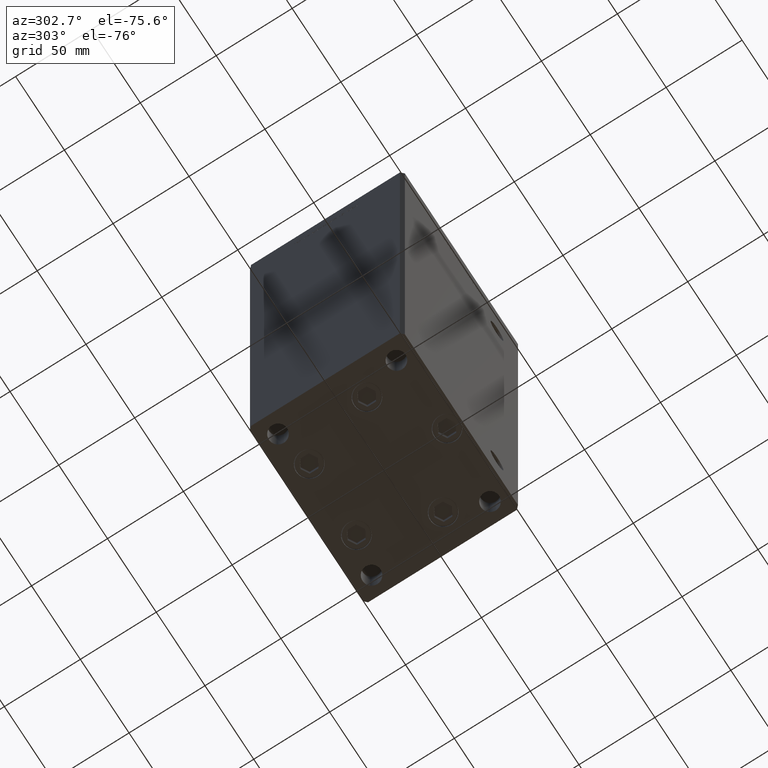
[diagram: clean part render]
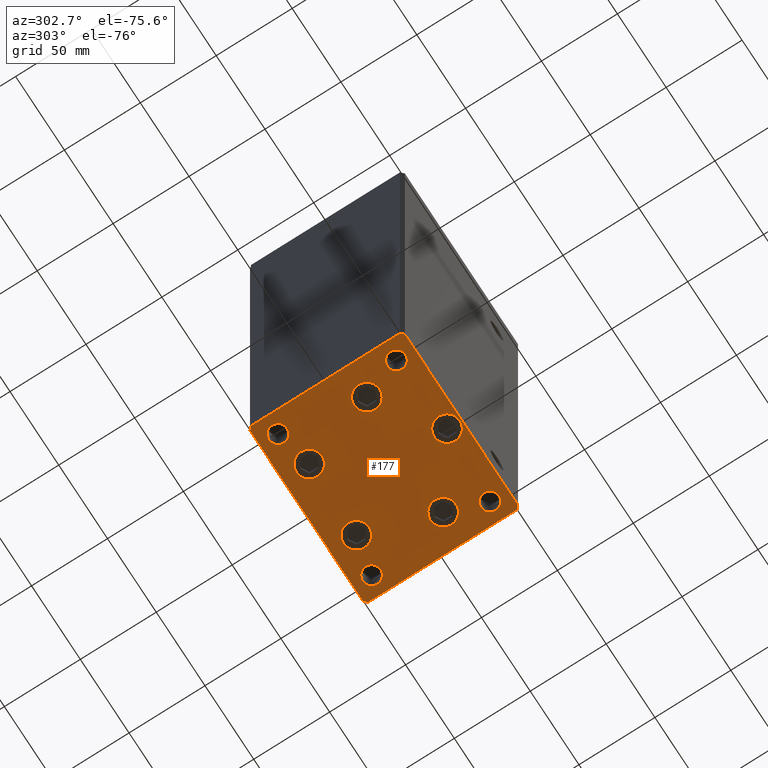
[diagram: same view with one face highlighted and labeled with its STEP entity id]
A machine part, auxiliary view. The second image highlights one B-rep face of the part: STEP entity #177.
In plain terms, the highlighted planar face has unit normal (0, 0, -1).
Its self-contained STEP definition (entity closure, byte-faithful):
#125 = CARTESIAN_POINT ( 'NONE',  ( 48.00000000000000000, -38.99999999999999289, 0.000000000000000000 ) ) ;
#177 = ADVANCED_FACE ( 'NONE', ( #20319, #19810, #19559, #27721, #32441, #43804, #20062, #11905, #40097, #51962 ), #47488, .T. ) ;
#767 = AXIS2_PLACEMENT_3D ( 'NONE', #50122, #49336, #36961 ) ;
#771 = DIRECTION ( 'NONE',  ( 0.000000000000000000, -0.000000000000000000, -1.000000000000000000 ) ) ;
#1126 = CARTESIAN_POINT ( 'NONE',  ( 58.00000000000000000, -51.00000000000000711, 0.000000000000000000 ) ) ;
#1446 = AXIS2_PLACEMENT_3D ( 'NONE', #28796, #13761, #25869 ) ;
#1596 = CIRCLE ( 'NONE', #49565, 6.000000000000005329 ) ;
#2232 = DIRECTION ( 'NONE',  ( 1.000000000000000000, 0.000000000000000000, 0.000000000000000000 ) ) ;
#2366 = EDGE_LOOP ( 'NONE', ( #20258, #40476 ) ) ;
#2495 = DIRECTION ( 'NONE',  ( 1.000000000000000000, 0.000000000000000000, 0.000000000000000000 ) ) ;
#2678 = CARTESIAN_POINT ( 'NONE',  ( 41.99999999999999289, 38.99999999999999289, 0.000000000000000000 ) ) ;
#2709 = CIRCLE ( 'NONE', #35558, 6.000000000000005329 ) ;
#2881 = LINE ( 'NONE', #18957, #8409 ) ;
#3193 = AXIS2_PLACEMENT_3D ( 'NONE', #27974, #3475, #7436 ) ;
#3475 = DIRECTION ( 'NONE',  ( 0.000000000000000000, -0.000000000000000000, -1.000000000000000000 ) ) ;
#3953 = DIRECTION ( 'NONE',  ( 1.000000000000000000, 0.000000000000000000, 0.000000000000000000 ) ) ;
#4154 = EDGE_CURVE ( 'NONE', #26371, #8353, #46912, .T. ) ;
#4414 = ORIENTED_EDGE ( 'NONE', *, *, #16545, .T. ) ;
#4525 = AXIS2_PLACEMENT_3D ( 'NONE', #22519, #5204, #2232 ) ;
#4682 = ORIENTED_EDGE ( 'NONE', *, *, #32647, .T. ) ;
#4693 = ORIENTED_EDGE ( 'NONE', *, *, #50819, .T. ) ;
#4957 = CARTESIAN_POINT ( 'NONE',  ( -60.00000000000000000, 48.99999999999995737, 0.000000000000000000 ) ) ;
#5029 = VERTEX_POINT ( 'NONE', #38806 ) ;
#5134 = EDGE_CURVE ( 'NONE', #20530, #41399, #15831, .T. ) ;
#5204 = DIRECTION ( 'NONE',  ( -0.000000000000000000, 0.000000000000000000, 1.000000000000000000 ) ) ;
#5350 = AXIS2_PLACEMENT_3D ( 'NONE', #14599, #45953, #38578 ) ;
#5634 = CARTESIAN_POINT ( 'NONE',  ( 60.00000000000001421, -48.99999999999999289, 0.000000000000000000 ) ) ;
#6195 = CARTESIAN_POINT ( 'NONE',  ( 24.19288941894911460, 33.71875000000000711, 0.000000000000000000 ) ) ;
#6333 = DIRECTION ( 'NONE',  ( -0.000000000000000000, 0.000000000000000000, 1.000000000000000000 ) ) ;
#6523 = CARTESIAN_POINT ( 'NONE',  ( 39.12657522565562829, -13.83333333333332860, 0.000000000000000000 ) ) ;
#6866 = EDGE_CURVE ( 'NONE', #8353, #26371, #32669, .T. ) ;
#7339 = ORIENTED_EDGE ( 'NONE', *, *, #13688, .T. ) ;
#7436 = DIRECTION ( 'NONE',  ( 1.000000000000000000, 0.000000000000000000, 0.000000000000000000 ) ) ;
#7687 = CARTESIAN_POINT ( 'NONE',  ( 59.99999999999994316, 49.00000000000000000, 0.000000000000000000 ) ) ;
#7700 = DIRECTION ( 'NONE',  ( 1.000000000000000000, 0.000000000000000000, 0.000000000000000000 ) ) ;
#8353 = VERTEX_POINT ( 'NONE', #30231 ) ;
#8409 = VECTOR ( 'NONE', #11039, 1000.000000000000114 ) ;
#8446 = CARTESIAN_POINT ( 'NONE',  ( 60.00000000000001421, -48.99999999999999289, 0.000000000000000000 ) ) ;
#8681 = DIRECTION ( 'NONE',  ( 1.000000000000000000, 0.000000000000000000, 0.000000000000000000 ) ) ;
#8899 = ORIENTED_EDGE ( 'NONE', *, *, #44344, .T. ) ;
#9251 = VERTEX_POINT ( 'NONE', #18377 ) ;
#9330 = CIRCLE ( 'NONE', #18641, 6.000000000000005329 ) ;
#9793 = LINE ( 'NONE', #18770, #42203 ) ;
#10353 = DIRECTION ( 'NONE',  ( -0.000000000000000000, 0.000000000000000000, 1.000000000000000000 ) ) ;
#10368 = VERTEX_POINT ( 'NONE', #44968 ) ;
#10863 = CIRCLE ( 'NONE', #767, 8.500000000000000000 ) ;
#11039 = DIRECTION ( 'NONE',  ( -0.7071067811865451302, -0.7071067811865500152, 0.000000000000000000 ) ) ;
#11168 = VECTOR ( 'NONE', #48602, 1000.000000000000000 ) ;
#11226 = EDGE_CURVE ( 'NONE', #23657, #42436, #14166, .T. ) ;
#11269 = AXIS2_PLACEMENT_3D ( 'NONE', #6195, #22786, #2495 ) ;
#11286 = ORIENTED_EDGE ( 'NONE', *, *, #15066, .T. ) ;
#11418 = CARTESIAN_POINT ( 'NONE',  ( -48.00000000000000000, -39.00000000000000000, 0.000000000000000000 ) ) ;
#11532 = DIRECTION ( 'NONE',  ( 1.000000000000000000, 1.196361017915039486E-16, 0.000000000000000000 ) ) ;
#11863 = EDGE_LOOP ( 'NONE', ( #41336, #49696 ) ) ;
#11905 = FACE_BOUND ( 'NONE', #2366, .T. ) ;
#11946 = DIRECTION ( 'NONE',  ( -0.000000000000000000, 0.000000000000000000, 1.000000000000000000 ) ) ;
#12355 = CARTESIAN_POINT ( 'NONE',  ( -57.99999999999999289, 50.99999999999997868, 0.000000000000000000 ) ) ;
#12371 = AXIS2_PLACEMENT_3D ( 'NONE', #39326, #16376, #7700 ) ;
#12575 = CARTESIAN_POINT ( 'NONE',  ( -32.69288941894912170, 33.71875000000000000, 0.000000000000000000 ) ) ;
#12951 = EDGE_CURVE ( 'NONE', #29940, #36013, #10863, .T. ) ;
#12954 = CIRCLE ( 'NONE', #14662, 8.500000000000000000 ) ;
#13688 = EDGE_CURVE ( 'NONE', #45320, #40283, #1596, .T. ) ;
#13761 = DIRECTION ( 'NONE',  ( 0.000000000000000000, -0.000000000000000000, -1.000000000000000000 ) ) ;
#13825 = DIRECTION ( 'NONE',  ( 0.000000000000000000, -0.000000000000000000, -1.000000000000000000 ) ) ;
#13964 = ORIENTED_EDGE ( 'NONE', *, *, #24433, .T. ) ;
#14119 = ORIENTED_EDGE ( 'NONE', *, *, #6866, .T. ) ;
#14166 = CIRCLE ( 'NONE', #16689, 6.000000000000005329 ) ;
#14192 = DIRECTION ( 'NONE',  ( 0.7071067811865474617, -0.7071067811865474617, 0.000000000000000000 ) ) ;
#14224 = ORIENTED_EDGE ( 'NONE', *, *, #31051, .T. ) ;
#14249 = CARTESIAN_POINT ( 'NONE',  ( -41.99999999999999289, -39.00000000000000000, 0.000000000000000000 ) ) ;
#14599 = CARTESIAN_POINT ( 'NONE',  ( 5.082284216461515748E-15, -41.50000000000000000, 0.000000000000000000 ) ) ;
#14662 = AXIS2_PLACEMENT_3D ( 'NONE', #45310, #771, #8681 ) ;
#14980 = VERTEX_POINT ( 'NONE', #51408 ) ;
#15066 = EDGE_CURVE ( 'NONE', #40283, #45320, #50467, .T. ) ;
#15635 = DIRECTION ( 'NONE',  ( 1.000000000000000000, 0.000000000000000000, 0.000000000000000000 ) ) ;
#15831 = CIRCLE ( 'NONE', #3193, 8.499999999999992895 ) ;
#16249 = VERTEX_POINT ( 'NONE', #31131 ) ;
#16268 = CARTESIAN_POINT ( 'NONE',  ( -15.69288941894911993, 33.71875000000000000, 0.000000000000000000 ) ) ;
#16301 = EDGE_CURVE ( 'NONE', #36013, #29940, #25246, .T. ) ;
#16376 = DIRECTION ( 'NONE',  ( -0.000000000000000000, 0.000000000000000000, 1.000000000000000000 ) ) ;
#16545 = EDGE_CURVE ( 'NONE', #46248, #25825, #2881, .T. ) ;
#16641 = CARTESIAN_POINT ( 'NONE',  ( 54.00000000000000711, 38.99999999999999289, 0.000000000000000000 ) ) ;
#16689 = AXIS2_PLACEMENT_3D ( 'NONE', #11418, #51738, #15635 ) ;
#16710 = DIRECTION ( 'NONE',  ( 1.000000000000000000, 0.000000000000000000, 0.000000000000000000 ) ) ;
#16772 = EDGE_CURVE ( 'NONE', #9251, #10368, #17656, .T. ) ;
#16850 = DIRECTION ( 'NONE',  ( 0.000000000000000000, -0.000000000000000000, -1.000000000000000000 ) ) ;
#17276 = ORIENTED_EDGE ( 'NONE', *, *, #18889, .T. ) ;
#17656 = CIRCLE ( 'NONE', #48799, 8.500000000000000000 ) ;
#17957 = CIRCLE ( 'NONE', #5350, 8.500000000000000000 ) ;
#18119 = CARTESIAN_POINT ( 'NONE',  ( -60.00000000000000000, 48.99999999999995737, 0.000000000000000000 ) ) ;
#18377 = CARTESIAN_POINT ( 'NONE',  ( 32.69288941894911460, 33.71875000000000711, 0.000000000000000000 ) ) ;
#18641 = AXIS2_PLACEMENT_3D ( 'NONE', #40179, #20139, #51787 ) ;
#18673 = LINE ( 'NONE', #34756, #39036 ) ;
#18770 = CARTESIAN_POINT ( 'NONE',  ( 58.00000000000000000, -51.00000000000000711, 0.000000000000000000 ) ) ;
#18889 = EDGE_CURVE ( 'NONE', #44175, #28530, #32681, .T. ) ;
#18909 = CIRCLE ( 'NONE', #25618, 8.499999999999992895 ) ;
#18910 = VERTEX_POINT ( 'NONE', #36903 ) ;
#18957 = CARTESIAN_POINT ( 'NONE',  ( -57.99999999999999289, 50.99999999999997868, 0.000000000000000000 ) ) ;
#19424 = DIRECTION ( 'NONE',  ( 0.000000000000000000, -0.000000000000000000, -1.000000000000000000 ) ) ;
#19462 = ORIENTED_EDGE ( 'NONE', *, *, #23986, .T. ) ;
#19559 = FACE_BOUND ( 'NONE', #48259, .T. ) ;
#19810 = FACE_BOUND ( 'NONE', #22341, .T. ) ;
#20062 = FACE_BOUND ( 'NONE', #42969, .T. ) ;
#20079 = LINE ( 'NONE', #48013, #37946 ) ;
#20139 = DIRECTION ( 'NONE',  ( 0.000000000000000000, -0.000000000000000000, -1.000000000000000000 ) ) ;
#20258 = ORIENTED_EDGE ( 'NONE', *, *, #46809, .F. ) ;
#20319 = FACE_BOUND ( 'NONE', #27875, .T. ) ;
#20530 = VERTEX_POINT ( 'NONE', #46523 ) ;
#20564 = DIRECTION ( 'NONE',  ( -0.7071067811865487940, 0.7071067811865463515, 0.000000000000000000 ) ) ;
#21003 = CIRCLE ( 'NONE', #32820, 6.000000000000005329 ) ;
#21743 = CARTESIAN_POINT ( 'NONE',  ( -39.12657522565562829, -13.83333333333333925, 0.000000000000000000 ) ) ;
#22012 = ORIENTED_EDGE ( 'NONE', *, *, #16772, .T. ) ;
#22341 = EDGE_LOOP ( 'NONE', ( #4682, #22012 ) ) ;
#22519 = CARTESIAN_POINT ( 'NONE',  ( -48.00000000000000000, 39.00000000000000000, 0.000000000000000000 ) ) ;
#22786 = DIRECTION ( 'NONE',  ( 0.000000000000000000, -0.000000000000000000, -1.000000000000000000 ) ) ;
#22819 = ORIENTED_EDGE ( 'NONE', *, *, #47211, .T. ) ;
#23657 = VERTEX_POINT ( 'NONE', #14249 ) ;
#23986 = EDGE_CURVE ( 'NONE', #42436, #23657, #9330, .T. ) ;
#24218 = DIRECTION ( 'NONE',  ( 0.000000000000000000, -1.000000000000000000, 0.000000000000000000 ) ) ;
#24433 = EDGE_CURVE ( 'NONE', #37487, #42979, #9793, .T. ) ;
#25246 = CIRCLE ( 'NONE', #42084, 8.500000000000000000 ) ;
#25618 = AXIS2_PLACEMENT_3D ( 'NONE', #6523, #19424, #51579 ) ;
#25825 = VERTEX_POINT ( 'NONE', #18119 ) ;
#25869 = DIRECTION ( 'NONE',  ( 1.000000000000000000, 0.000000000000000000, 0.000000000000000000 ) ) ;
#26371 = VERTEX_POINT ( 'NONE', #30588 ) ;
#26734 = DIRECTION ( 'NONE',  ( 1.000000000000000000, 0.000000000000000000, 0.000000000000000000 ) ) ;
#26805 = ORIENTED_EDGE ( 'NONE', *, *, #31640, .T. ) ;
#27721 = FACE_BOUND ( 'NONE', #42201, .T. ) ;
#27875 = EDGE_LOOP ( 'NONE', ( #32299, #51839 ) ) ;
#27974 = CARTESIAN_POINT ( 'NONE',  ( 39.12657522565562829, -13.83333333333332860, 0.000000000000000000 ) ) ;
#28020 = DIRECTION ( 'NONE',  ( 1.000000000000000000, 0.000000000000000000, 0.000000000000000000 ) ) ;
#28083 = CARTESIAN_POINT ( 'NONE',  ( 30.62657522565563184, -13.83333333333332860, 0.000000000000000000 ) ) ;
#28436 = LINE ( 'NONE', #4957, #45876 ) ;
#28530 = VERTEX_POINT ( 'NONE', #49659 ) ;
#28796 = CARTESIAN_POINT ( 'NONE',  ( -39.12657522565562829, -13.83333333333333925, 0.000000000000000000 ) ) ;
#29603 = DIRECTION ( 'NONE',  ( 1.000000000000000000, 0.000000000000000000, 0.000000000000000000 ) ) ;
#29940 = VERTEX_POINT ( 'NONE', #16268 ) ;
#30231 = CARTESIAN_POINT ( 'NONE',  ( -30.62657522565562829, -13.83333333333333748, 0.000000000000000000 ) ) ;
#30346 = VERTEX_POINT ( 'NONE', #51734 ) ;
#30588 = CARTESIAN_POINT ( 'NONE',  ( -47.62657522565562829, -13.83333333333333925, 0.000000000000000000 ) ) ;
#30644 = EDGE_CURVE ( 'NONE', #42625, #30346, #18673, .T. ) ;
#30944 = CARTESIAN_POINT ( 'NONE',  ( -60.00000000000000000, -49.00000000000000000, 0.000000000000000000 ) ) ;
#31051 = EDGE_CURVE ( 'NONE', #16249, #18910, #17957, .T. ) ;
#31087 = CARTESIAN_POINT ( 'NONE',  ( 48.00000000000000000, 38.99999999999999289, 0.000000000000000000 ) ) ;
#31131 = CARTESIAN_POINT ( 'NONE',  ( 8.500000000000005329, -41.50000000000000000, 0.000000000000000000 ) ) ;
#31396 = CARTESIAN_POINT ( 'NONE',  ( -24.19288941894912170, 33.71875000000000000, 0.000000000000000000 ) ) ;
#31640 = EDGE_CURVE ( 'NONE', #18910, #16249, #12954, .T. ) ;
#32239 = VERTEX_POINT ( 'NONE', #2678 ) ;
#32299 = ORIENTED_EDGE ( 'NONE', *, *, #16301, .T. ) ;
#32441 = FACE_BOUND ( 'NONE', #41836, .T. ) ;
#32633 = EDGE_CURVE ( 'NONE', #14980, #5029, #51674, .T. ) ;
#32647 = EDGE_CURVE ( 'NONE', #10368, #9251, #49137, .T. ) ;
#32669 = CIRCLE ( 'NONE', #47721, 8.500000000000000000 ) ;
#32681 = LINE ( 'NONE', #7687, #37938 ) ;
#32820 = AXIS2_PLACEMENT_3D ( 'NONE', #41171, #11946, #28020 ) ;
#33021 = ORIENTED_EDGE ( 'NONE', *, *, #5134, .T. ) ;
#33089 = DIRECTION ( 'NONE',  ( 1.000000000000000000, 0.000000000000000000, 0.000000000000000000 ) ) ;
#33789 = EDGE_CURVE ( 'NONE', #41399, #20530, #18909, .T. ) ;
#34289 = VERTEX_POINT ( 'NONE', #16641 ) ;
#34451 = EDGE_CURVE ( 'NONE', #25825, #42625, #28436, .T. ) ;
#34756 = CARTESIAN_POINT ( 'NONE',  ( -60.00000000000000000, -49.00000000000000000, 0.000000000000000000 ) ) ;
#34843 = DIRECTION ( 'NONE',  ( 1.000000000000000000, 0.000000000000000000, 0.000000000000000000 ) ) ;
#35558 = AXIS2_PLACEMENT_3D ( 'NONE', #31087, #6333, #47162 ) ;
#35862 = EDGE_LOOP ( 'NONE', ( #41520, #22819, #13964, #4693, #17276, #8899, #4414, #38082 ) ) ;
#36013 = VERTEX_POINT ( 'NONE', #12575 ) ;
#36903 = CARTESIAN_POINT ( 'NONE',  ( -8.499999999999994671, -41.50000000000000000, 0.000000000000000000 ) ) ;
#36961 = DIRECTION ( 'NONE',  ( 1.000000000000000000, 0.000000000000000000, 0.000000000000000000 ) ) ;
#37487 = VERTEX_POINT ( 'NONE', #1126 ) ;
#37938 = VECTOR ( 'NONE', #20564, 1000.000000000000000 ) ;
#37946 = VECTOR ( 'NONE', #44586, 1000.000000000000000 ) ;
#38082 = ORIENTED_EDGE ( 'NONE', *, *, #34451, .T. ) ;
#38206 = ORIENTED_EDGE ( 'NONE', *, *, #4154, .T. ) ;
#38233 = EDGE_LOOP ( 'NONE', ( #48596, #19462 ) ) ;
#38578 = DIRECTION ( 'NONE',  ( 1.000000000000000000, 0.000000000000000000, 0.000000000000000000 ) ) ;
#38806 = CARTESIAN_POINT ( 'NONE',  ( -41.99999999999999289, 39.00000000000000000, 0.000000000000000000 ) ) ;
#38860 = CIRCLE ( 'NONE', #43082, 6.000000000000005329 ) ;
#38891 = ORIENTED_EDGE ( 'NONE', *, *, #33789, .T. ) ;
#39036 = VECTOR ( 'NONE', #14192, 1000.000000000000114 ) ;
#39326 = CARTESIAN_POINT ( 'NONE',  ( 0.000000000000000000, 0.000000000000000000, 0.000000000000000000 ) ) ;
#40061 = CARTESIAN_POINT ( 'NONE',  ( 48.00000000000000000, -38.99999999999999289, 0.000000000000000000 ) ) ;
#40097 = FACE_OUTER_BOUND ( 'NONE', #35862, .T. ) ;
#40179 = CARTESIAN_POINT ( 'NONE',  ( -48.00000000000000000, -39.00000000000000000, 0.000000000000000000 ) ) ;
#40283 = VERTEX_POINT ( 'NONE', #42660 ) ;
#40476 = ORIENTED_EDGE ( 'NONE', *, *, #32633, .F. ) ;
#41093 = CARTESIAN_POINT ( 'NONE',  ( 41.99999999999999289, -38.99999999999999289, 0.000000000000000000 ) ) ;
#41171 = CARTESIAN_POINT ( 'NONE',  ( 48.00000000000000000, 38.99999999999999289, 0.000000000000000000 ) ) ;
#41336 = ORIENTED_EDGE ( 'NONE', *, *, #48372, .F. ) ;
#41399 = VERTEX_POINT ( 'NONE', #28083 ) ;
#41520 = ORIENTED_EDGE ( 'NONE', *, *, #30644, .T. ) ;
#41747 = LINE ( 'NONE', #5634, #11168 ) ;
#41772 = EDGE_CURVE ( 'NONE', #32239, #34289, #21003, .T. ) ;
#41836 = EDGE_LOOP ( 'NONE', ( #38206, #14119 ) ) ;
#41987 = CARTESIAN_POINT ( 'NONE',  ( 59.99999999999994316, 49.00000000000000000, 0.000000000000000000 ) ) ;
#42084 = AXIS2_PLACEMENT_3D ( 'NONE', #31396, #43526, #34843 ) ;
#42201 = EDGE_LOOP ( 'NONE', ( #26805, #14224 ) ) ;
#42203 = VECTOR ( 'NONE', #46169, 1000.000000000000114 ) ;
#42436 = VERTEX_POINT ( 'NONE', #49660 ) ;
#42625 = VERTEX_POINT ( 'NONE', #30944 ) ;
#42660 = CARTESIAN_POINT ( 'NONE',  ( 54.00000000000000711, -38.99999999999999289, 0.000000000000000000 ) ) ;
#42925 = AXIS2_PLACEMENT_3D ( 'NONE', #40061, #16850, #3953 ) ;
#42969 = EDGE_LOOP ( 'NONE', ( #11286, #7339 ) ) ;
#42979 = VERTEX_POINT ( 'NONE', #8446 ) ;
#43082 = AXIS2_PLACEMENT_3D ( 'NONE', #46466, #10353, #29603 ) ;
#43526 = DIRECTION ( 'NONE',  ( 0.000000000000000000, -0.000000000000000000, -1.000000000000000000 ) ) ;
#43804 = FACE_BOUND ( 'NONE', #11863, .T. ) ;
#44175 = VERTEX_POINT ( 'NONE', #41987 ) ;
#44344 = EDGE_CURVE ( 'NONE', #28530, #46248, #20079, .T. ) ;
#44586 = DIRECTION ( 'NONE',  ( -1.000000000000000000, -2.392722035830079958E-16, 0.000000000000000000 ) ) ;
#44915 = DIRECTION ( 'NONE',  ( 0.000000000000000000, -0.000000000000000000, -1.000000000000000000 ) ) ;
#44968 = CARTESIAN_POINT ( 'NONE',  ( 15.69288941894910927, 33.71875000000000711, 0.000000000000000000 ) ) ;
#45310 = CARTESIAN_POINT ( 'NONE',  ( 5.082284216461515748E-15, -41.50000000000000000, 0.000000000000000000 ) ) ;
#45320 = VERTEX_POINT ( 'NONE', #41093 ) ;
#45736 = DIRECTION ( 'NONE',  ( 0.000000000000000000, -0.000000000000000000, -1.000000000000000000 ) ) ;
#45876 = VECTOR ( 'NONE', #24218, 1000.000000000000000 ) ;
#45953 = DIRECTION ( 'NONE',  ( 0.000000000000000000, -0.000000000000000000, -1.000000000000000000 ) ) ;
#46169 = DIRECTION ( 'NONE',  ( 0.7071067811865474617, 0.7071067811865474617, 0.000000000000000000 ) ) ;
#46248 = VERTEX_POINT ( 'NONE', #12355 ) ;
#46466 = CARTESIAN_POINT ( 'NONE',  ( -48.00000000000000000, 39.00000000000000000, 0.000000000000000000 ) ) ;
#46523 = CARTESIAN_POINT ( 'NONE',  ( 47.62657522565562118, -13.83333333333332682, 0.000000000000000000 ) ) ;
#46760 = CARTESIAN_POINT ( 'NONE',  ( 24.19288941894911460, 33.71875000000000711, 0.000000000000000000 ) ) ;
#46809 = EDGE_CURVE ( 'NONE', #5029, #14980, #38860, .T. ) ;
#46912 = CIRCLE ( 'NONE', #1446, 8.500000000000000000 ) ;
#47162 = DIRECTION ( 'NONE',  ( 1.000000000000000000, 0.000000000000000000, 0.000000000000000000 ) ) ;
#47211 = EDGE_CURVE ( 'NONE', #30346, #37487, #51074, .T. ) ;
#47285 = VECTOR ( 'NONE', #11532, 1000.000000000000000 ) ;
#47379 = CARTESIAN_POINT ( 'NONE',  ( -57.99999999999997868, -51.00000000000001421, 0.000000000000000000 ) ) ;
#47488 = PLANE ( 'NONE',  #12371 ) ;
#47721 = AXIS2_PLACEMENT_3D ( 'NONE', #21743, #45736, #33089 ) ;
#48013 = CARTESIAN_POINT ( 'NONE',  ( 57.99999999999993605, 51.00000000000000711, 0.000000000000000000 ) ) ;
#48259 = EDGE_LOOP ( 'NONE', ( #38891, #33021 ) ) ;
#48372 = EDGE_CURVE ( 'NONE', #34289, #32239, #2709, .T. ) ;
#48596 = ORIENTED_EDGE ( 'NONE', *, *, #11226, .T. ) ;
#48602 = DIRECTION ( 'NONE',  ( -7.080503983578803823E-16, 1.000000000000000000, 0.000000000000000000 ) ) ;
#48799 = AXIS2_PLACEMENT_3D ( 'NONE', #46760, #13825, #26734 ) ;
#49137 = CIRCLE ( 'NONE', #11269, 8.500000000000000000 ) ;
#49336 = DIRECTION ( 'NONE',  ( 0.000000000000000000, -0.000000000000000000, -1.000000000000000000 ) ) ;
#49565 = AXIS2_PLACEMENT_3D ( 'NONE', #125, #44915, #16710 ) ;
#49659 = CARTESIAN_POINT ( 'NONE',  ( 57.99999999999993605, 51.00000000000000711, 0.000000000000000000 ) ) ;
#49660 = CARTESIAN_POINT ( 'NONE',  ( -54.00000000000000711, -39.00000000000000000, 0.000000000000000000 ) ) ;
#49696 = ORIENTED_EDGE ( 'NONE', *, *, #41772, .F. ) ;
#50122 = CARTESIAN_POINT ( 'NONE',  ( -24.19288941894912170, 33.71875000000000000, 0.000000000000000000 ) ) ;
#50467 = CIRCLE ( 'NONE', #42925, 6.000000000000005329 ) ;
#50819 = EDGE_CURVE ( 'NONE', #42979, #44175, #41747, .T. ) ;
#51074 = LINE ( 'NONE', #47379, #47285 ) ;
#51408 = CARTESIAN_POINT ( 'NONE',  ( -54.00000000000000711, 39.00000000000000000, 0.000000000000000000 ) ) ;
#51579 = DIRECTION ( 'NONE',  ( 1.000000000000000000, 0.000000000000000000, 0.000000000000000000 ) ) ;
#51674 = CIRCLE ( 'NONE', #4525, 6.000000000000005329 ) ;
#51734 = CARTESIAN_POINT ( 'NONE',  ( -57.99999999999997868, -51.00000000000001421, 0.000000000000000000 ) ) ;
#51738 = DIRECTION ( 'NONE',  ( 0.000000000000000000, -0.000000000000000000, -1.000000000000000000 ) ) ;
#51787 = DIRECTION ( 'NONE',  ( 1.000000000000000000, 0.000000000000000000, 0.000000000000000000 ) ) ;
#51839 = ORIENTED_EDGE ( 'NONE', *, *, #12951, .T. ) ;
#51962 = FACE_BOUND ( 'NONE', #38233, .T. ) ;